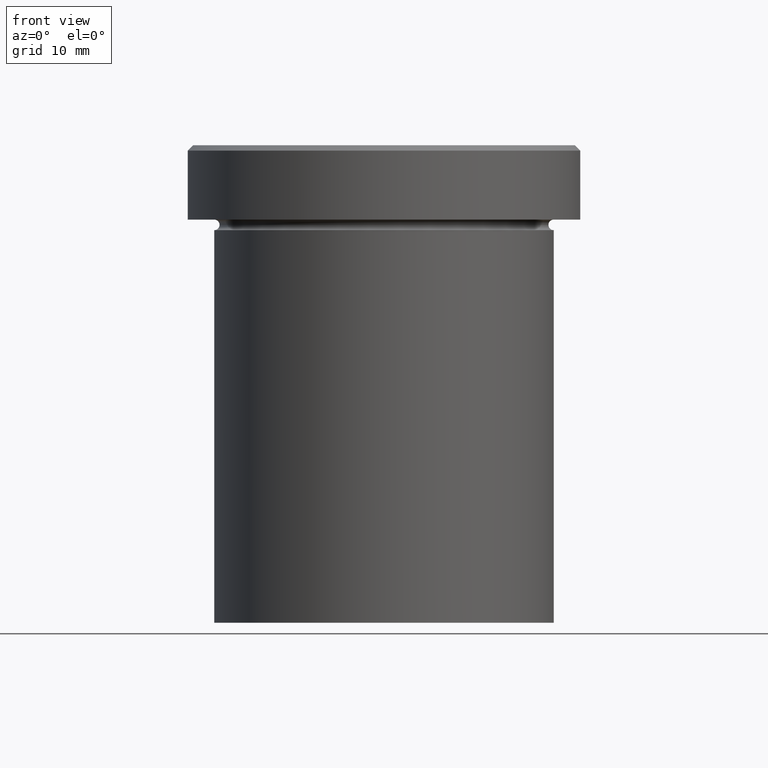
[diagram: clean part render]
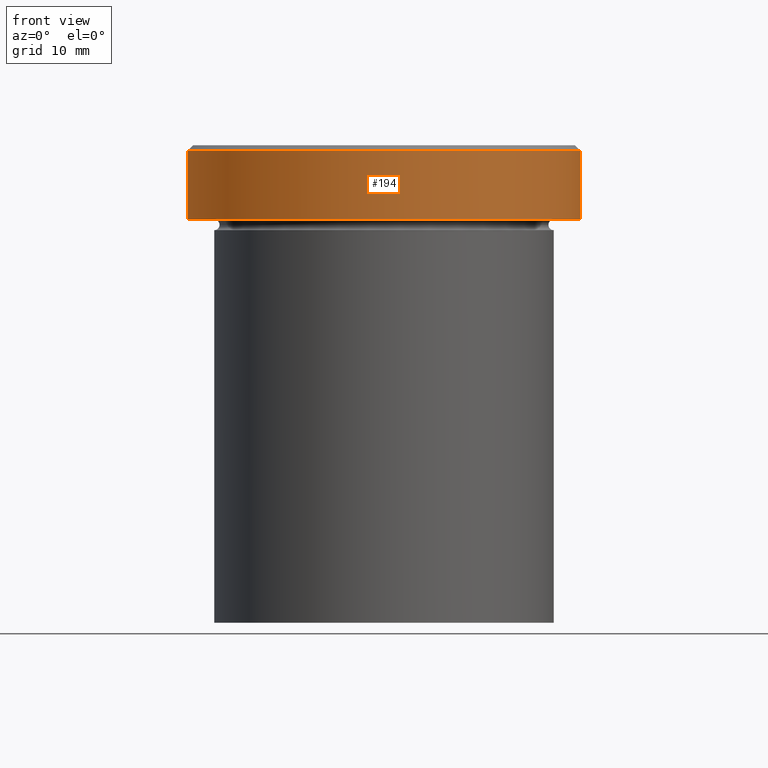
[diagram: same view with one face highlighted and labeled with its STEP entity id]
A machine part, front view. The second image highlights one B-rep face of the part: STEP entity #194.
In plain terms, the highlighted cylindrical surface (partial cylindrical patch) has radius 18.5 mm, axis along (-0, -0, 1).
Its self-contained STEP definition (entity closure, byte-faithful):
#20 = DIRECTION ( 'NONE',  ( -0.000000000000000000, -0.000000000000000000, 1.000000000000000000 ) ) ;
#26 = VERTEX_POINT ( 'NONE', #151 ) ;
#43 = DIRECTION ( 'NONE',  ( 1.000000000000000000, 0.000000000000000000, 0.000000000000000000 ) ) ;
#44 = LINE ( 'NONE', #228, #50 ) ;
#50 = VECTOR ( 'NONE', #108, 1000.000000000000000 ) ;
#61 = VECTOR ( 'NONE', #87, 1000.000000000000000 ) ;
#82 = EDGE_CURVE ( 'NONE', #26, #135, #121, .T. ) ;
#87 = DIRECTION ( 'NONE',  ( -0.000000000000000000, -0.000000000000000000, 1.000000000000000000 ) ) ;
#108 = DIRECTION ( 'NONE',  ( -0.000000000000000000, -0.000000000000000000, 1.000000000000000000 ) ) ;
#120 = CIRCLE ( 'NONE', #245, 18.50000000000000000 ) ;
#121 = LINE ( 'NONE', #360, #61 ) ;
#135 = VERTEX_POINT ( 'NONE', #318 ) ;
#140 = EDGE_CURVE ( 'NONE', #176, #135, #365, .T. ) ;
#146 = ORIENTED_EDGE ( 'NONE', *, *, #362, .T. ) ;
#151 = CARTESIAN_POINT ( 'NONE',  ( -18.50000000000000000, 2.265596578422603396E-15, -6.999999999999998224 ) ) ;
#154 = DIRECTION ( 'NONE',  ( 1.000000000000000000, 0.000000000000000000, 0.000000000000000000 ) ) ;
#157 = EDGE_LOOP ( 'NONE', ( #404, #146, #271, #249 ) ) ;
#165 = CARTESIAN_POINT ( 'NONE',  ( 0.000000000000000000, 0.000000000000000000, -0.4999999999999865663 ) ) ;
#176 = VERTEX_POINT ( 'NONE', #216 ) ;
#183 = CYLINDRICAL_SURFACE ( 'NONE', #186, 18.50000000000000000 ) ;
#186 = AXIS2_PLACEMENT_3D ( 'NONE', #330, #357, #154 ) ;
#194 = ADVANCED_FACE ( 'NONE', ( #400 ), #183, .T. ) ;
#196 = CARTESIAN_POINT ( 'NONE',  ( 18.50000000000000000, 0.000000000000000000, -6.999999999999998224 ) ) ;
#210 = CARTESIAN_POINT ( 'NONE',  ( 0.000000000000000000, 0.000000000000000000, -6.999999999999998224 ) ) ;
#216 = CARTESIAN_POINT ( 'NONE',  ( 18.50000000000000000, 0.000000000000000000, -0.4999999999999865663 ) ) ;
#228 = CARTESIAN_POINT ( 'NONE',  ( 18.50000000000000000, 0.000000000000000000, 0.000000000000000000 ) ) ;
#245 = AXIS2_PLACEMENT_3D ( 'NONE', #210, #20, #327 ) ;
#249 = ORIENTED_EDGE ( 'NONE', *, *, #140, .T. ) ;
#257 = VERTEX_POINT ( 'NONE', #196 ) ;
#263 = EDGE_CURVE ( 'NONE', #257, #176, #44, .T. ) ;
#271 = ORIENTED_EDGE ( 'NONE', *, *, #263, .T. ) ;
#318 = CARTESIAN_POINT ( 'NONE',  ( -18.50000000000000000, 2.265596578422603396E-15, -0.4999999999999865663 ) ) ;
#327 = DIRECTION ( 'NONE',  ( 1.000000000000000000, 0.000000000000000000, 0.000000000000000000 ) ) ;
#330 = CARTESIAN_POINT ( 'NONE',  ( 0.000000000000000000, 0.000000000000000000, 0.000000000000000000 ) ) ;
#344 = AXIS2_PLACEMENT_3D ( 'NONE', #165, #371, #43 ) ;
#357 = DIRECTION ( 'NONE',  ( -0.000000000000000000, -0.000000000000000000, 1.000000000000000000 ) ) ;
#360 = CARTESIAN_POINT ( 'NONE',  ( -18.50000000000000000, 2.265596578422603396E-15, 0.000000000000000000 ) ) ;
#362 = EDGE_CURVE ( 'NONE', #26, #257, #120, .T. ) ;
#365 = CIRCLE ( 'NONE', #344, 18.50000000000000000 ) ;
#371 = DIRECTION ( 'NONE',  ( 0.000000000000000000, 0.000000000000000000, -1.000000000000000000 ) ) ;
#400 = FACE_OUTER_BOUND ( 'NONE', #157, .T. ) ;
#404 = ORIENTED_EDGE ( 'NONE', *, *, #82, .F. ) ;